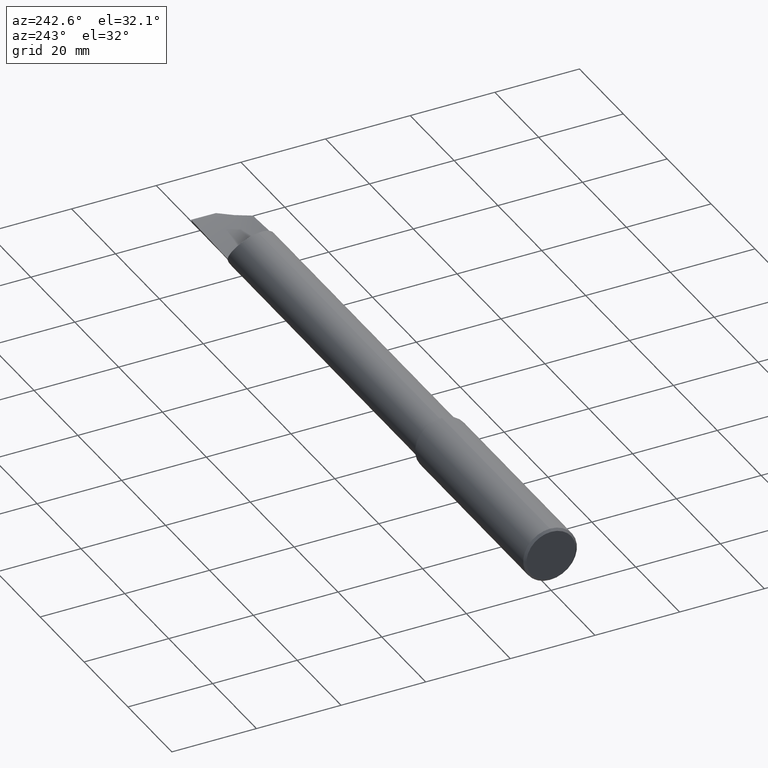
[diagram: clean part render]
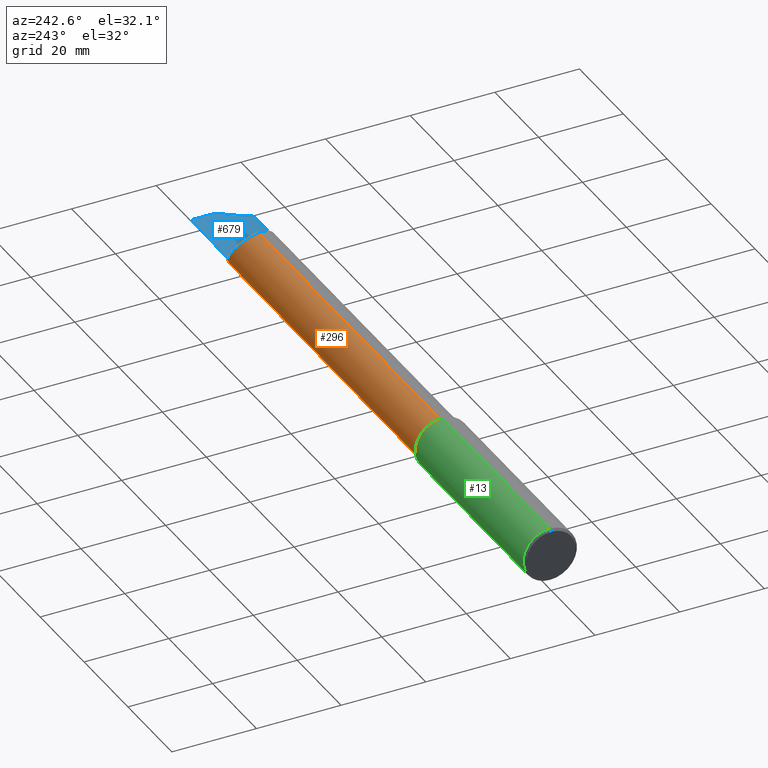
[diagram: same view with three faces highlighted in distinct colors, each labeled with its STEP entity id]
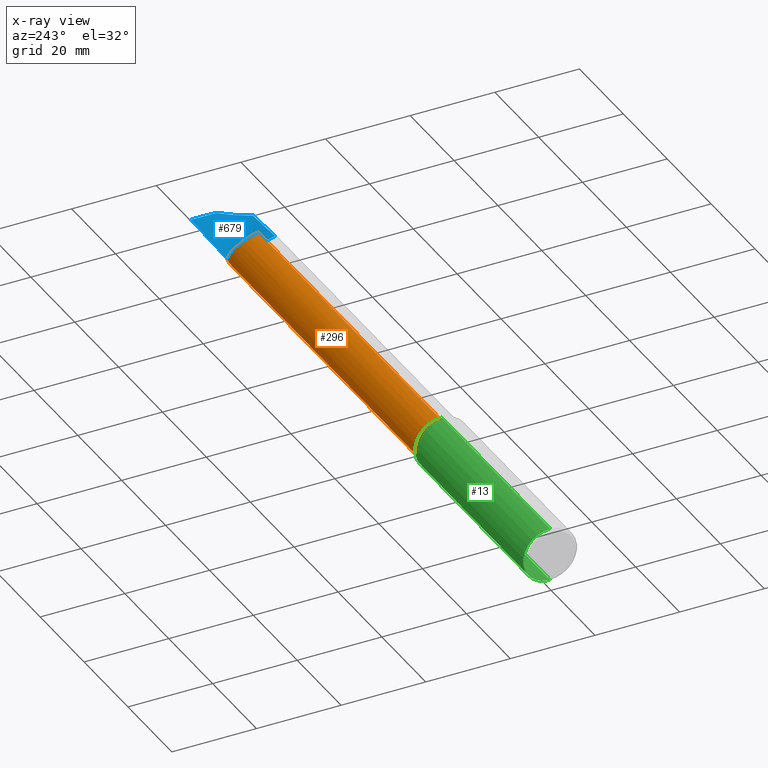
[diagram: x-ray of the same camera — body ghosted, the three highlighted faces saturated]
A machine part, auxiliary view with three faces highlighted in distinct colors.
The next image is the same camera in x-ray (body ghosted, the three faces saturated) — at least one of them is partly hidden behind the body in this view.
Their STEP definitions:

[orange] entity #296 — the highlighted cylindrical surface (edge-blend (fillet) strip) has radius 5.588 mm, axis along (-1, -0, -0).
#2 = CARTESIAN_POINT ( 'NONE',  ( 5.377263106783646940, 0.2194462568404662584, -0.02799947325392485031 ) ) ;
#8 = CARTESIAN_POINT ( 'NONE',  ( 5.336129437027316236, 0.2172026737800336060, 0.03511665452093235690 ) ) ;
#11 = DIRECTION ( 'NONE',  ( -1.000000000000000000, -0.000000000000000000, -0.000000000000000000 ) ) ;
#18 = AXIS2_PLACEMENT_3D ( 'NONE', #124, #78, #194 ) ;
#21 = CARTESIAN_POINT ( 'NONE',  ( 5.250000000000000888, 0.000000000000000000, 0.000000000000000000 ) ) ;
#23 =( BOUNDED_CURVE ( )  B_SPLINE_CURVE ( 2, ( #25, #81, #440 ),
 .UNSPECIFIED., .F., .F. ) 
 B_SPLINE_CURVE_WITH_KNOTS ( ( 3, 3 ),
 ( 0.5266614230579070854, 0.5400257304258038182 ),
 .UNSPECIFIED. ) 
 CURVE ( )  GEOMETRIC_REPRESENTATION_ITEM ( )  RATIONAL_B_SPLINE_CURVE ( ( 0.9955652346528230945, 0.9953917806560829140, 0.9952287059344252507 ) ) 
 REPRESENTATION_ITEM ( '' )  );
#25 = CARTESIAN_POINT ( 'NONE',  ( 5.392944745247168825, 0.2140968924730454748, -0.05062134562993383935 ) ) ;
#45 = VERTEX_POINT ( 'NONE', #659 ) ;
#47 = CARTESIAN_POINT ( 'NONE',  ( 5.252747084439405967, 0.001941860339958889929, 0.2199919648580568321 ) ) ;
#52 = CARTESIAN_POINT ( 'NONE',  ( 5.252899803584523575, 0.0009714720314203271947, 0.2199983901436112776 ) ) ;
#55 = CARTESIAN_POINT ( 'NONE',  ( 5.263299120774839857, 0.1481083136068665207, 0.1627128149071685459 ) ) ;
#63 = LINE ( 'NONE', #363, #92 ) ;
#66 = CARTESIAN_POINT ( 'NONE',  ( 5.361872680313166661, 0.2211791025387655485, -0.004520542396876575664 ) ) ;
#68 = LINE ( 'NONE', #709, #451 ) ;
#77 = CARTESIAN_POINT ( 'NONE',  ( 5.338186628435208192, 0.2176984924494593521, 0.03190986540131428295 ) ) ;
#78 = DIRECTION ( 'NONE',  ( -1.000000000000000000, -0.000000000000000000, -0.000000000000000000 ) ) ;
#81 = CARTESIAN_POINT ( 'NONE',  ( 5.401469481609320944, 0.2142601318164513158, -0.04993094446185701585 ) ) ;
#86 = B_SPLINE_CURVE_WITH_KNOTS ( 'NONE', 3,
 ( #469, #746, #52, #47, #576, #294, #618, #472, #686 ),
 .UNSPECIFIED., .F., .F.,
 ( 4, 2, 1, 1, 1, 4 ),
 ( 0.9276727079954699695, 0.9321931637457538944, 0.9367136194960377082, 0.9457545309966040037, 0.9638363539977363725, 1.000000000000000000 ),
 .UNSPECIFIED. ) ;
#92 = VECTOR ( 'NONE', #328, 39.37007874015748143 ) ;
#104 = CARTESIAN_POINT ( 'NONE',  ( 5.303082447116823417, 0.2014617548662042956, 0.08839233498445403514 ) ) ;
#111 = EDGE_LOOP ( 'NONE', ( #639, #402, #757, #426, #210, #460, #754, #498, #533 ) ) ;
#120 = CARTESIAN_POINT ( 'NONE',  ( 5.258515655996601978, 0.1351780063360196460, 0.1737028663086810920 ) ) ;
#124 = CARTESIAN_POINT ( 'NONE',  ( 0.000000000000000000, 0.000000000000000000, 0.000000000000000000 ) ) ;
#130 = CARTESIAN_POINT ( 'NONE',  ( 5.392944745247168825, 0.2140968924730454748, -0.05062134562993383935 ) ) ;
#136 = CYLINDRICAL_SURFACE ( 'NONE', #18, 0.2200000000000000566 ) ;
#149 = EDGE_CURVE ( 'NONE', #669, #193, #86, .T. ) ;
#156 = CIRCLE ( 'NONE', #343, 0.2200000000000000566 ) ;
#162 = CARTESIAN_POINT ( 'NONE',  ( 5.301951721649977856, 0.2006176853541234983, 0.09029816438342547213 ) ) ;
#167 = CARTESIAN_POINT ( 'NONE',  ( 5.302742053925486587, 0.2012100239217667619, 0.08896533452429478128 ) ) ;
#173 = CARTESIAN_POINT ( 'NONE',  ( 5.250000000000000888, 0.09504805913230378323, 0.1984083326253766877 ) ) ;
#174 = CARTESIAN_POINT ( 'NONE',  ( 5.250000000000000888, 0.02296396303118268881, 0.2187982093206032042 ) ) ;
#183 = CARTESIAN_POINT ( 'NONE',  ( 5.410000000000000142, 0.2135228625924187884, -0.05299044395307136307 ) ) ;
#184 = VERTEX_POINT ( 'NONE', #581 ) ;
#185 = CARTESIAN_POINT ( 'NONE',  ( 5.341349125908413598, 0.2183424038738390471, 0.02700579478126316491 ) ) ;
#193 = VERTEX_POINT ( 'NONE', #174 ) ;
#194 = DIRECTION ( 'NONE',  ( 0.000000000000000000, 0.000000000000000000, 1.000000000000000000 ) ) ;
#196 = EDGE_CURVE ( 'NONE', #629, #471, #272, .T. ) ;
#197 = DIRECTION ( 'NONE',  ( -1.000000000000000000, -0.000000000000000000, -0.000000000000000000 ) ) ;
#210 = ORIENTED_EDGE ( 'NONE', *, *, #149, .T. ) ;
#223 = CARTESIAN_POINT ( 'NONE',  ( 5.410000000000000142, 2.694222958124177253E-17, -0.2200000000000000011 ) ) ;
#231 = CARTESIAN_POINT ( 'NONE',  ( 5.260302850203079750, 0.1404692177818710475, 0.1694536208928180965 ) ) ;
#235 = CARTESIAN_POINT ( 'NONE',  ( 5.253785031901272440, 0.1187834096907167958, 0.1856707252788582230 ) ) ;
#239 = CARTESIAN_POINT ( 'NONE',  ( 5.273164231607916363, 0.1684140353893864850, 0.1420550892562131851 ) ) ;
#249 = CARTESIAN_POINT ( 'NONE',  ( 5.346221521786773678, 0.2191350097120725593, 0.01949428548441049097 ) ) ;
#253 = CARTESIAN_POINT ( 'NONE',  ( 5.342949552235360500, 0.2186394009669333782, 0.02453030179456536231 ) ) ;
#272 = B_SPLINE_CURVE_WITH_KNOTS ( 'NONE', 3,
 ( #356, #742, #235, #120, #231, #55, #289, #521, #755, #337, #697, #410, #239, #677, #566, #279, #511, #463, #736, #162, #167, #104, #340, #284, #517, #458, #406, #626, #8, #77, #185, #253, #303, #487, #249, #654, #66, #2, #588 ),
 .UNSPECIFIED., .F., .F.,
 ( 4, 2, 2, 1, 1, 1, 2, 2, 2, 2, 1, 1, 1, 1, 2, 2, 2, 2, 2, 1, 1, 2, 2, 4 ),
 ( 0.000000000000000000, 0.1250000000000632550, 0.1875000000000961176, 0.2187500000001124656, 0.2343750000001207090, 0.2421875000001248446, 0.2460937500001254830, 0.2500000000001261213, 0.3750000000000630607, 0.4375000000000336398, 0.4687500000000210387, 0.4843750000000147660, 0.4921875000000116018, 0.4960937500000122680, 0.4980468750000126010, 0.5000000000000128786, 0.6249999999999572564, 0.6874999999999319433, 0.7187499999999192868, 0.7343749999999129585, 0.7421874999999098499, 0.7460937499999106270, 0.7499999999999112932, 1.000000000000000000 ),
 .UNSPECIFIED. ) ;
#279 = CARTESIAN_POINT ( 'NONE',  ( 5.289897884054999722, 0.1899916407718357791, 0.1111104138017025428 ) ) ;
#284 = CARTESIAN_POINT ( 'NONE',  ( 5.303450587856115561, 0.2017322369564578388, 0.08777317349638595612 ) ) ;
#289 = CARTESIAN_POINT ( 'NONE',  ( 5.264876125876235768, 0.1518534575458663771, 0.1592507360763968649 ) ) ;
#293 = CARTESIAN_POINT ( 'NONE',  ( 5.253048836201133831, -1.183062825525345383E-06, 0.2200124226379089887 ) ) ;
#294 = CARTESIAN_POINT ( 'NONE',  ( 5.252011678586734789, 0.006780167464581198303, 0.2199103442296861943 ) ) ;
#295 = VERTEX_POINT ( 'NONE', #223 ) ;
#296 = ADVANCED_FACE ( 'NONE', ( #759 ), #136, .T. ) ;
#298 = AXIS2_PLACEMENT_3D ( 'NONE', #409, #625, #730 ) ;
#303 = CARTESIAN_POINT ( 'NONE',  ( 5.344850277066564459, 0.2189397232252884296, 0.02160200614133551966 ) ) ;
#328 = DIRECTION ( 'NONE',  ( -1.000000000000000000, -0.000000000000000000, -0.000000000000000000 ) ) ;
#330 = CIRCLE ( 'NONE', #572, 0.2200000000000000011 ) ;
#337 = CARTESIAN_POINT ( 'NONE',  ( 5.268323433205456929, 0.1590487263599245915, 0.1519989609637832917 ) ) ;
#340 = CARTESIAN_POINT ( 'NONE',  ( 5.303309749101932979, 0.2016291004824135591, 0.08800993919113511699 ) ) ;
#343 = AXIS2_PLACEMENT_3D ( 'NONE', #21, #388, #612 ) ;
#356 = CARTESIAN_POINT ( 'NONE',  ( 5.250000000000000888, 0.09504805913230378323, 0.1984083326253766877 ) ) ;
#363 = CARTESIAN_POINT ( 'NONE',  ( 0.000000000000000000, 2.694222958124177561E-17, -0.2200000000000000566 ) ) ;
#380 = CIRCLE ( 'NONE', #298, 0.2200000000000000566 ) ;
#383 = VERTEX_POINT ( 'NONE', #546 ) ;
#384 = EDGE_CURVE ( 'NONE', #45, #415, #330, .T. ) ;
#388 = DIRECTION ( 'NONE',  ( 1.000000000000000000, -0.000000000000000000, -0.000000000000000000 ) ) ;
#402 = ORIENTED_EDGE ( 'NONE', *, *, #477, .T. ) ;
#405 = DIRECTION ( 'NONE',  ( 0.000000000000000000, 0.000000000000000000, 1.000000000000000000 ) ) ;
#406 = CARTESIAN_POINT ( 'NONE',  ( 5.326303742156078158, 0.2141922380105743262, 0.05056821540889350208 ) ) ;
#409 = CARTESIAN_POINT ( 'NONE',  ( 1.984525038226270466, 0.000000000000000000, 0.000000000000000000 ) ) ;
#410 = CARTESIAN_POINT ( 'NONE',  ( 5.268791352084498669, 0.1599650663951595886, 0.1510341587815036413 ) ) ;
#415 = VERTEX_POINT ( 'NONE', #183 ) ;
#426 = ORIENTED_EDGE ( 'NONE', *, *, #442, .F. ) ;
#440 = CARTESIAN_POINT ( 'NONE',  ( 5.410000000000001918, 0.2144189151190963594, -0.04923950486296321122 ) ) ;
#442 = EDGE_CURVE ( 'NONE', #669, #383, #68, .T. ) ;
#451 = VECTOR ( 'NONE', #197, 39.37007874015748143 ) ;
#457 = CARTESIAN_POINT ( 'NONE',  ( 5.410000000000000142, 0.000000000000000000, 0.000000000000000000 ) ) ;
#458 = CARTESIAN_POINT ( 'NONE',  ( 5.315494800936125586, 0.2096186112504940802, 0.06783711927764354832 ) ) ;
#460 = ORIENTED_EDGE ( 'NONE', *, *, #530, .F. ) ;
#463 = CARTESIAN_POINT ( 'NONE',  ( 5.297319446116645736, 0.1969271478189842384, 0.09817724510292789863 ) ) ;
#469 = CARTESIAN_POINT ( 'NONE',  ( 5.253048836201133831, -1.183062825525345383E-06, 0.2200124226379089887 ) ) ;
#471 = VERTEX_POINT ( 'NONE', #130 ) ;
#472 = CARTESIAN_POINT ( 'NONE',  ( 5.250393707398775867, 0.01920438848276740523, 0.2191927973443306421 ) ) ;
#477 = EDGE_CURVE ( 'NONE', #295, #184, #63, .T. ) ;
#487 = CARTESIAN_POINT ( 'NONE',  ( 5.345672065019172692, 0.2190582683874626457, 0.02033850287371858495 ) ) ;
#498 = ORIENTED_EDGE ( 'NONE', *, *, #587, .T. ) ;
#511 = CARTESIAN_POINT ( 'NONE',  ( 5.294797823663016878, 0.1946680960171449093, 0.1025422805366140583 ) ) ;
#517 = CARTESIAN_POINT ( 'NONE',  ( 5.309107083977441910, 0.2058594515306521877, 0.07826862847856236316 ) ) ;
#521 = CARTESIAN_POINT ( 'NONE',  ( 5.266853987338341980, 0.1560847454646942245, 0.1550568531507960923 ) ) ;
#530 = EDGE_CURVE ( 'NONE', #629, #193, #156, .T. ) ;
#533 = ORIENTED_EDGE ( 'NONE', *, *, #384, .T. ) ;
#542 = CARTESIAN_POINT ( 'NONE',  ( 5.410000000000000142, 0.000000000000000000, 0.000000000000000000 ) ) ;
#546 = CARTESIAN_POINT ( 'NONE',  ( 1.984525038226270466, 0.000000000000000000, 0.2200000000000000566 ) ) ;
#566 = CARTESIAN_POINT ( 'NONE',  ( 5.286822331381984874, 0.1866629217514929606, 0.1166063220459099964 ) ) ;
#572 = AXIS2_PLACEMENT_3D ( 'NONE', #542, #11, #706 ) ;
#576 = CARTESIAN_POINT ( 'NONE',  ( 5.252520733773949679, 0.003396144702146769358, 0.2199775199475226262 ) ) ;
#581 = CARTESIAN_POINT ( 'NONE',  ( 1.984525038226270466, 2.694222958124177561E-17, -0.2200000000000000566 ) ) ;
#587 = EDGE_CURVE ( 'NONE', #471, #45, #23, .T. ) ;
#588 = CARTESIAN_POINT ( 'NONE',  ( 5.392944745247168825, 0.2140968924730454748, -0.05062134562993383935 ) ) ;
#608 = AXIS2_PLACEMENT_3D ( 'NONE', #457, #681, #405 ) ;
#612 = DIRECTION ( 'NONE',  ( 0.000000000000000000, 5.329070518200750605E-15, 1.000000000000000000 ) ) ;
#618 = CARTESIAN_POINT ( 'NONE',  ( 5.251069953674378787, 0.01350924812411918516, 0.2196435465291619316 ) ) ;
#625 = DIRECTION ( 'NONE',  ( -1.000000000000000000, -0.000000000000000000, -0.000000000000000000 ) ) ;
#626 = CARTESIAN_POINT ( 'NONE',  ( 5.330111283526380639, 0.2155380220859020035, 0.04454306593680017884 ) ) ;
#629 = VERTEX_POINT ( 'NONE', #173 ) ;
#639 = ORIENTED_EDGE ( 'NONE', *, *, #708, .T. ) ;
#654 = CARTESIAN_POINT ( 'NONE',  ( 5.346537449119416863, 0.2191775090838475881, 0.01900924779463317171 ) ) ;
#659 = CARTESIAN_POINT ( 'NONE',  ( 5.410000000000001918, 0.2144189151190963594, -0.04923950486296321122 ) ) ;
#669 = VERTEX_POINT ( 'NONE', #293 ) ;
#673 = CIRCLE ( 'NONE', #608, 0.2200000000000000011 ) ;
#677 = CARTESIAN_POINT ( 'NONE',  ( 5.278168894559946978, 0.1761411732434174648, 0.1324183139899700046 ) ) ;
#681 = DIRECTION ( 'NONE',  ( -1.000000000000000000, -0.000000000000000000, -0.000000000000000000 ) ) ;
#686 = CARTESIAN_POINT ( 'NONE',  ( 5.250000000000000888, 0.02296396303118268881, 0.2187982093206032042 ) ) ;
#697 = CARTESIAN_POINT ( 'NONE',  ( 5.268622416054465241, 0.1596362058502384662, 0.1513818459146411277 ) ) ;
#706 = DIRECTION ( 'NONE',  ( 0.000000000000000000, 0.000000000000000000, 1.000000000000000000 ) ) ;
#708 = EDGE_CURVE ( 'NONE', #415, #295, #673, .T. ) ;
#709 = CARTESIAN_POINT ( 'NONE',  ( 0.000000000000000000, 0.000000000000000000, 0.2200000000000000566 ) ) ;
#716 = EDGE_CURVE ( 'NONE', #383, #184, #380, .T. ) ;
#730 = DIRECTION ( 'NONE',  ( 0.000000000000000000, 0.000000000000000000, 1.000000000000000000 ) ) ;
#736 = CARTESIAN_POINT ( 'NONE',  ( 5.300386731116057071, 0.1994133129509669533, 0.09294706894654218565 ) ) ;
#742 = CARTESIAN_POINT ( 'NONE',  ( 5.251472560536515566, 0.1071583420974530909, 0.1926068782975457749 ) ) ;
#746 = CARTESIAN_POINT ( 'NONE',  ( 5.252989359298702254, 0.0004094560187717709667, 0.2200000003197546961 ) ) ;
#754 = ORIENTED_EDGE ( 'NONE', *, *, #196, .T. ) ;
#755 = CARTESIAN_POINT ( 'NONE',  ( 5.267877423613678722, 0.1581649231382637744, 0.1529219638397233128 ) ) ;
#757 = ORIENTED_EDGE ( 'NONE', *, *, #716, .F. ) ;
#759 = FACE_OUTER_BOUND ( 'NONE', #111, .T. ) ;

[blue] entity #679 — the highlighted face is a freeform B-spline surface patch.
#4 = EDGE_CURVE ( 'NONE', #483, #6, #501, .T. ) ;
#6 = VERTEX_POINT ( 'NONE', #314 ) ;
#10 = CARTESIAN_POINT ( 'NONE',  ( 5.771270714435558169, -0.2170814383730695907, 0.03571623039850650716 ) ) ;
#23 =( BOUNDED_CURVE ( )  B_SPLINE_CURVE ( 2, ( #25, #81, #440 ),
 .UNSPECIFIED., .F., .F. ) 
 B_SPLINE_CURVE_WITH_KNOTS ( ( 3, 3 ),
 ( 0.5266614230579070854, 0.5400257304258038182 ),
 .UNSPECIFIED. ) 
 CURVE ( )  GEOMETRIC_REPRESENTATION_ITEM ( )  RATIONAL_B_SPLINE_CURVE ( ( 0.9955652346528230945, 0.9953917806560829140, 0.9952287059344252507 ) ) 
 REPRESENTATION_ITEM ( '' )  );
#25 = CARTESIAN_POINT ( 'NONE',  ( 5.392944745247168825, 0.2140968924730454748, -0.05062134562993383935 ) ) ;
#28 = EDGE_CURVE ( 'NONE', #471, #6, #89, .T. ) ;
#36 = CARTESIAN_POINT ( 'NONE',  ( 5.358974358974360364, 0.1342370902800414656, -0.04940682683429966499 ) ) ;
#45 = VERTEX_POINT ( 'NONE', #659 ) ;
#50 = CARTESIAN_POINT ( 'NONE',  ( 5.415657971079504307, 0.2155047129925782845, -0.04896678893848467606 ) ) ;
#58 = CARTESIAN_POINT ( 'NONE',  ( 5.998256711176780165, 0.08645143747528813427, -0.003266647090703651314 ) ) ;
#74 = EDGE_CURVE ( 'NONE', #729, #583, #198, .T. ) ;
#75 = VERTEX_POINT ( 'NONE', #601 ) ;
#81 = CARTESIAN_POINT ( 'NONE',  ( 5.401469481609320944, 0.2142601318164513158, -0.04993094446185701585 ) ) ;
#89 = B_SPLINE_CURVE_WITH_KNOTS ( 'NONE', 3,
 ( #261, #255, #377, #371 ),
 .UNSPECIFIED., .F., .F.,
 ( 4, 4 ),
 ( 0.000000000000000000, 1.000000000000000000 ),
 .UNSPECIFIED. ) ;
#98 = CARTESIAN_POINT ( 'NONE',  ( 5.771270714435558169, -0.2170814383730695907, 0.03571623039850650716 ) ) ;
#102 =( BOUNDED_SURFACE ( )  B_SPLINE_SURFACE ( 3, 2, ( 
 ( #216, #113, #524, #166, #735 ),
 ( #580, #355, #676, #398, #569 ),
 ( #288, #350, #36, #516, #745 ),
 ( #468, #157, #741, #178, #413 ) ),
 .UNSPECIFIED., .F., .F., .F. ) 
 B_SPLINE_SURFACE_WITH_KNOTS ( ( 4, 4 ),
 ( 3, 2, 3 ),
 ( 0.000000000000000000, 1.000000000000000000 ),
 ( 0.000000000000000000, 0.5000000000000000000, 1.000000000000000000 ),
 .UNSPECIFIED. ) 
 GEOMETRIC_REPRESENTATION_ITEM ( )  RATIONAL_B_SPLINE_SURFACE ( (
 ( 1.000000000000000000, 0.9927088740980539727, 1.000000000000000000, 0.9927088740980539727, 1.000000000000000000),
 ( 0.9932804858608129672, 0.9860383527824556626, 0.9932804858608129672, 0.9860383527824556626, 0.9932804858608129672),
 ( 0.9932804858608129672, 0.9860383527824556626, 0.9932804858608129672, 0.9860383527824556626, 0.9932804858608129672),
 ( 1.000000000000000000, 0.9927088740980539727, 1.000000000000000000, 0.9927088740980539727, 1.000000000000000000) ) ) 
 REPRESENTATION_ITEM ( '' )  SURFACE ( )  );
#112 = CARTESIAN_POINT ( 'NONE',  ( 5.410000000000001918, 0.2144189151190963594, -0.04923950486296321122 ) ) ;
#113 = CARTESIAN_POINT ( 'NONE',  ( 5.679487179487181514, -0.4174835547069452035, 0.09860675650306138795 ) ) ;
#130 = CARTESIAN_POINT ( 'NONE',  ( 5.392944745247168825, 0.2140968924730454748, -0.05062134562993383935 ) ) ;
#144 = CARTESIAN_POINT ( 'NONE',  ( 5.418486830548875588, 0.2160475044874685668, -0.04882782362294692258 ) ) ;
#145 = CARTESIAN_POINT ( 'NONE',  ( 5.806231657992949380, 0.2339654237526884728, -0.01788766252031758278 ) ) ;
#152 = ORIENTED_EDGE ( 'NONE', *, *, #587, .F. ) ;
#157 = CARTESIAN_POINT ( 'NONE',  ( 5.679487179487181514, 0.4274412781259713245, -0.03849778046020245481 ) ) ;
#166 = CARTESIAN_POINT ( 'NONE',  ( 5.038461538461542766, -0.3817540999168784754, 0.1956517775933941383 ) ) ;
#178 = CARTESIAN_POINT ( 'NONE',  ( 5.038461538461542766, 0.4058074895221152611, -0.1396724983455376601 ) ) ;
#198 = B_SPLINE_CURVE_WITH_KNOTS ( 'NONE', 3,
 ( #204, #145, #605, #672 ),
 .UNSPECIFIED., .F., .F.,
 ( 4, 4 ),
 ( 1.235384741098576477E-19, 0.01483563987091332179 ),
 .UNSPECIFIED. ) ;
#204 = CARTESIAN_POINT ( 'NONE',  ( 6.000000000000000888, 0.2402499999999999636, 0.000000000000000000 ) ) ;
#214 = B_SPLINE_CURVE_WITH_KNOTS ( 'NONE', 3,
 ( #488, #589, #58, #712 ),
 .UNSPECIFIED., .F., .F.,
 ( 4, 4 ),
 ( 4.258922872613060102E-16, 0.005858684638792402942 ),
 .UNSPECIFIED. ) ;
#216 = CARTESIAN_POINT ( 'NONE',  ( 6.000000000000000888, -0.4232169687476833864, 0.04721891282440422027 ) ) ;
#255 = CARTESIAN_POINT ( 'NONE',  ( 5.380960247964670984, 0.07009182744065016457, -0.02311703390389483956 ) ) ;
#261 = CARTESIAN_POINT ( 'NONE',  ( 5.392944745247168825, 0.2140968924730454748, -0.05062134562993383935 ) ) ;
#266 = CARTESIAN_POINT ( 'NONE',  ( 5.358974358974359475, -0.2089406661879938953, 0.06887523512059523512 ) ) ;
#275 = CARTESIAN_POINT ( 'NONE',  ( 5.846075425691751093, -0.1422767271168811631, 0.01425986872581111106 ) ) ;
#277 = ORIENTED_EDGE ( 'NONE', *, *, #433, .F. ) ;
#278 = CARTESIAN_POINT ( 'NONE',  ( 5.997941307501974073, 0.009589154693346030670, -0.0003725554249012499267 ) ) ;
#288 = CARTESIAN_POINT ( 'NONE',  ( 6.000000000000000000, 0.1421602319866792363, -0.01584611580735217559 ) ) ;
#314 = CARTESIAN_POINT ( 'NONE',  ( 5.356559098504063421, -0.2088777642239236787, 0.06906576061805669298 ) ) ;
#318 = CARTESIAN_POINT ( 'NONE',  ( 5.564429700643780841, -0.2143015012764733496, 0.05261254719292928622 ) ) ;
#326 = B_SPLINE_CURVE_WITH_KNOTS ( 'NONE', 3,
 ( #278, #632, #275, #98 ),
 .UNSPECIFIED., .F., .F.,
 ( 4, 4 ),
 ( 7.367693421365798835E-05, 0.008267352743947888050 ),
 .UNSPECIFIED. ) ;
#332 = CARTESIAN_POINT ( 'NONE',  ( 6.000000000000000888, 0.2402499999999999636, 0.000000000000000000 ) ) ;
#350 = CARTESIAN_POINT ( 'NONE',  ( 5.679487179487179738, 0.1402361651789809094, -0.03310749311051140731 ) ) ;
#355 = CARTESIAN_POINT ( 'NONE',  ( 5.679487179487179738, -0.1433107432254709379, 0.01290318863713321371 ) ) ;
#371 = CARTESIAN_POINT ( 'NONE',  ( 5.356559098504063421, -0.2088777642239236787, 0.06906576061805669298 ) ) ;
#377 = CARTESIAN_POINT ( 'NONE',  ( 5.368992473848769542, -0.07181561011661122262, 0.01702505518877546822 ) ) ;
#398 = CARTESIAN_POINT ( 'NONE',  ( 5.038461538461540101, -0.1360584583238938217, 0.04682475114047649628 ) ) ;
#413 = CARTESIAN_POINT ( 'NONE',  ( 4.717948717948720727, 0.3831985670997781201, -0.1862012283307211968 ) ) ;
#433 = EDGE_CURVE ( 'NONE', #729, #75, #214, .T. ) ;
#440 = CARTESIAN_POINT ( 'NONE',  ( 5.410000000000001918, 0.2144189151190963594, -0.04923950486296321122 ) ) ;
#468 = CARTESIAN_POINT ( 'NONE',  ( 6.000000000000000888, 0.4258375057284731757, 0.01320825401576949422 ) ) ;
#471 = VERTEX_POINT ( 'NONE', #130 ) ;
#483 = VERTEX_POINT ( 'NONE', #499 ) ;
#488 = CARTESIAN_POINT ( 'NONE',  ( 6.000000000000000888, 0.2402499999999999636, 0.000000000000000000 ) ) ;
#499 = CARTESIAN_POINT ( 'NONE',  ( 5.771270714435558169, -0.2170814383730695907, 0.03571623039850650716 ) ) ;
#501 =( BOUNDED_CURVE ( )  B_SPLINE_CURVE ( 2, ( #10, #318, #266, #547, #718 ),
 .UNSPECIFIED., .F., .F. ) 
 B_SPLINE_CURVE_WITH_KNOTS ( ( 3, 2, 3 ),
 ( 0.1786485734947638737, 0.5000000000000000000, 0.5019619316750385529 ),
 .UNSPECIFIED. ) 
 CURVE ( )  GEOMETRIC_REPRESENTATION_ITEM ( )  RATIONAL_B_SPLINE_CURVE ( ( 0.9929648280793842430, 0.9916323561610862480, 0.9963010501997406898, 0.9962725466427000409, 0.9962442667737849700 ) ) 
 REPRESENTATION_ITEM ( '' )  );
#504 = ORIENTED_EDGE ( 'NONE', *, *, #650, .F. ) ;
#516 = CARTESIAN_POINT ( 'NONE',  ( 5.038461538461540101, 0.1282380153811019941, -0.06570616055808793654 ) ) ;
#523 = ORIENTED_EDGE ( 'NONE', *, *, #28, .T. ) ;
#524 = CARTESIAN_POINT ( 'NONE',  ( 5.358974358974360364, -0.3996188273119117840, 0.1471292670482277631 ) ) ;
#547 = CARTESIAN_POINT ( 'NONE',  ( 5.357725844419114480, -0.2089080893730916877, 0.06897406050240388609 ) ) ;
#559 = ORIENTED_EDGE ( 'NONE', *, *, #4, .F. ) ;
#560 = CARTESIAN_POINT ( 'NONE',  ( 5.412829028078361304, 0.2149618471159617794, -0.04910401580184040049 ) ) ;
#569 = CARTESIAN_POINT ( 'NONE',  ( 4.717948717948720727, -0.1284787043503996806, 0.06242489022452848979 ) ) ;
#580 = CARTESIAN_POINT ( 'NONE',  ( 6.000000000000000000, -0.1427725359348056000, -0.004432535825742341291 ) ) ;
#583 = VERTEX_POINT ( 'NONE', #144 ) ;
#587 = EDGE_CURVE ( 'NONE', #471, #45, #23, .T. ) ;
#589 = CARTESIAN_POINT ( 'NONE',  ( 5.998938641188132692, 0.1633380998407373552, -0.003177467661417954052 ) ) ;
#601 = CARTESIAN_POINT ( 'NONE',  ( 5.997941307501974073, 0.009589154693346030670, -0.0003725554249012499267 ) ) ;
#605 = CARTESIAN_POINT ( 'NONE',  ( 5.612381827555388725, 0.2257843348541586359, -0.03415235492858138128 ) ) ;
#620 = EDGE_LOOP ( 'NONE', ( #277, #675, #635, #152, #523, #559, #504 ) ) ;
#632 = CARTESIAN_POINT ( 'NONE',  ( 5.921631811082991526, -0.06672034172563345855, 0.002224270572586306473 ) ) ;
#635 = ORIENTED_EDGE ( 'NONE', *, *, #748, .F. ) ;
#650 = EDGE_CURVE ( 'NONE', #75, #483, #326, .T. ) ;
#659 = CARTESIAN_POINT ( 'NONE',  ( 5.410000000000001918, 0.2144189151190963594, -0.04923950486296321122 ) ) ;
#670 = CARTESIAN_POINT ( 'NONE',  ( 5.418486830548875588, 0.2160475044874685668, -0.04882782362294692258 ) ) ;
#671 = FACE_OUTER_BOUND ( 'NONE', #620, .T. ) ;
#672 = CARTESIAN_POINT ( 'NONE',  ( 5.418486830548875588, 0.2160475044874685668, -0.04882782362294692258 ) ) ;
#675 = ORIENTED_EDGE ( 'NONE', *, *, #74, .T. ) ;
#676 = CARTESIAN_POINT ( 'NONE',  ( 5.358974358974360364, -0.1396846007746824214, 0.02986396988880485326 ) ) ;
#679 = ADVANCED_FACE ( 'NONE', ( #671 ), #102, .T. ) ;
#712 = CARTESIAN_POINT ( 'NONE',  ( 5.997941307501974073, 0.009589154693346030670, -0.0003725554249012499267 ) ) ;
#718 = CARTESIAN_POINT ( 'NONE',  ( 5.356559098504063421, -0.2088777642239236787, 0.06906576061805669298 ) ) ;
#729 = VERTEX_POINT ( 'NONE', #332 ) ;
#733 = B_SPLINE_CURVE_WITH_KNOTS ( 'NONE', 3,
 ( #112, #560, #50, #670 ),
 .UNSPECIFIED., .F., .F.,
 ( 4, 4 ),
 ( 0.000000000000000000, 0.0002197412204929500385 ),
 .UNSPECIFIED. ) ;
#735 = CARTESIAN_POINT ( 'NONE',  ( 4.717948717948720727, -0.3527962921881071523, 0.2384890030643342096 ) ) ;
#741 = CARTESIAN_POINT ( 'NONE',  ( 5.358974358974360364, 0.4166243838240432651, -0.08908513940287006438 ) ) ;
#745 = CARTESIAN_POINT ( 'NONE',  ( 4.717948717948720727, 0.1185125768182977157, -0.08009619267214614091 ) ) ;
#748 = EDGE_CURVE ( 'NONE', #45, #583, #733, .T. ) ;

[green] entity #13 — the highlighted cylindrical surface (edge-blend (fillet) strip) has radius 6.3462 mm, axis along (-1, -0, -0).
#12 = DIRECTION ( 'NONE',  ( -1.000000000000000000, -0.000000000000000000, -0.000000000000000000 ) ) ;
#13 = ADVANCED_FACE ( 'NONE', ( #553 ), #720, .T. ) ;
#14 = CARTESIAN_POINT ( 'NONE',  ( 0.02000000000000000042, 0.000000000000000000, 0.000000000000000000 ) ) ;
#17 = CARTESIAN_POINT ( 'NONE',  ( 0.000000000000000000, 0.000000000000000000, 0.2498499999999999888 ) ) ;
#35 = EDGE_CURVE ( 'NONE', #229, #364, #604, .T. ) ;
#70 = CARTESIAN_POINT ( 'NONE',  ( 1.959525038226270555, 3.059780027669661931E-17, -0.2498499999999999888 ) ) ;
#80 = ORIENTED_EDGE ( 'NONE', *, *, #522, .F. ) ;
#83 = CIRCLE ( 'NONE', #490, 0.2498499999999999888 ) ;
#90 = EDGE_CURVE ( 'NONE', #106, #190, #595, .T. ) ;
#99 = CARTESIAN_POINT ( 'NONE',  ( 0.02000000000000000042, 3.059780027669661931E-17, -0.2498499999999999888 ) ) ;
#106 = VERTEX_POINT ( 'NONE', #70 ) ;
#147 = DIRECTION ( 'NONE',  ( 0.000000000000000000, 0.000000000000000000, 1.000000000000000000 ) ) ;
#153 = DIRECTION ( 'NONE',  ( 1.000000000000000000, 0.000000000000000000, 0.000000000000000000 ) ) ;
#172 = VECTOR ( 'NONE', #489, 39.37007874015748143 ) ;
#181 = ORIENTED_EDGE ( 'NONE', *, *, #90, .T. ) ;
#190 = VERTEX_POINT ( 'NONE', #99 ) ;
#228 = EDGE_CURVE ( 'NONE', #364, #190, #321, .T. ) ;
#229 = VERTEX_POINT ( 'NONE', #598 ) ;
#257 = DIRECTION ( 'NONE',  ( 0.000000000000000000, 0.000000000000000000, 1.000000000000000000 ) ) ;
#281 = ORIENTED_EDGE ( 'NONE', *, *, #228, .F. ) ;
#321 = CIRCLE ( 'NONE', #607, 0.2498499999999999888 ) ;
#364 = VERTEX_POINT ( 'NONE', #417 ) ;
#368 = DIRECTION ( 'NONE',  ( -1.000000000000000000, -0.000000000000000000, -0.000000000000000000 ) ) ;
#379 = VECTOR ( 'NONE', #492, 39.37007874015748143 ) ;
#385 = DIRECTION ( 'NONE',  ( 0.000000000000000000, 0.000000000000000000, -1.000000000000000000 ) ) ;
#397 = ORIENTED_EDGE ( 'NONE', *, *, #35, .F. ) ;
#417 = CARTESIAN_POINT ( 'NONE',  ( 0.02000000000000000042, 0.000000000000000000, 0.2498499999999999888 ) ) ;
#430 = CARTESIAN_POINT ( 'NONE',  ( 0.000000000000000000, 0.000000000000000000, 0.000000000000000000 ) ) ;
#445 = CARTESIAN_POINT ( 'NONE',  ( 1.959525038226270555, 0.000000000000000000, 0.000000000000000000 ) ) ;
#455 = EDGE_LOOP ( 'NONE', ( #80, #181, #281, #397 ) ) ;
#489 = DIRECTION ( 'NONE',  ( -1.000000000000000000, -0.000000000000000000, -0.000000000000000000 ) ) ;
#490 = AXIS2_PLACEMENT_3D ( 'NONE', #445, #153, #385 ) ;
#492 = DIRECTION ( 'NONE',  ( -1.000000000000000000, -0.000000000000000000, -0.000000000000000000 ) ) ;
#522 = EDGE_CURVE ( 'NONE', #106, #229, #83, .T. ) ;
#538 = AXIS2_PLACEMENT_3D ( 'NONE', #430, #12, #147 ) ;
#550 = CARTESIAN_POINT ( 'NONE',  ( 0.000000000000000000, 3.059780027669661931E-17, -0.2498499999999999888 ) ) ;
#553 = FACE_OUTER_BOUND ( 'NONE', #455, .T. ) ;
#595 = LINE ( 'NONE', #550, #172 ) ;
#598 = CARTESIAN_POINT ( 'NONE',  ( 1.959525038226270555, 0.000000000000000000, 0.2498499999999999888 ) ) ;
#604 = LINE ( 'NONE', #17, #379 ) ;
#607 = AXIS2_PLACEMENT_3D ( 'NONE', #14, #368, #257 ) ;
#720 = CYLINDRICAL_SURFACE ( 'NONE', #538, 0.2498499999999999888 ) ;